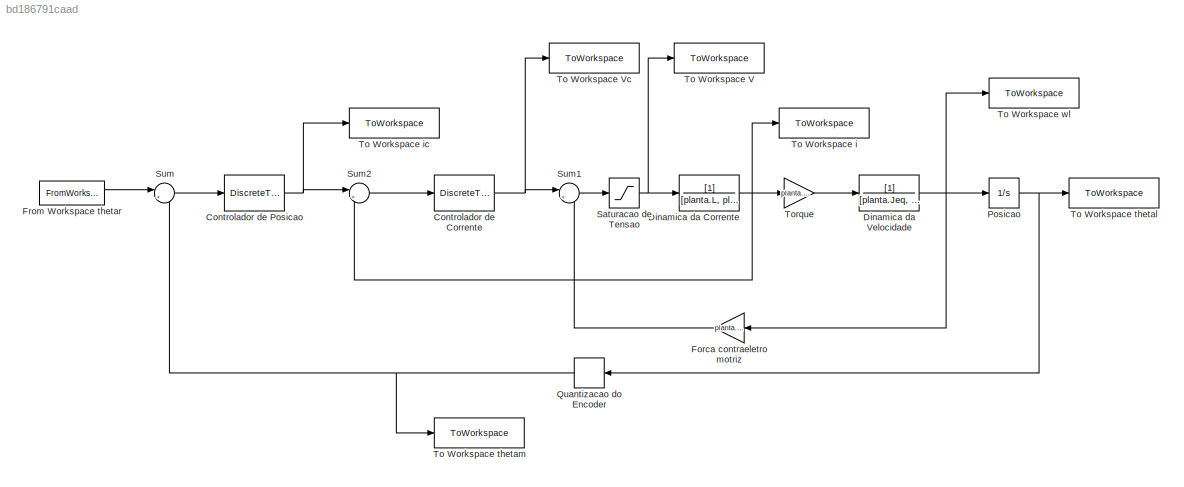
MODEL slx_bd186791caad
KIND model
CONFIG AbsTol = auto
CONFIG EnableMultiTasking = off
CONFIG FixedStep = 1e-6
CONFIG MaxStep = auto
CONFIG MinStep = auto
CONFIG RelTol = 1e-3
CONFIG SampleTimeConstraint = Unconstrained
CONFIG SolverName = FixedStepAuto
CONFIG StartTime = 0.0
CONFIG StopTime = tf
BLOCK [DiscreteTransferFcn] Controlador de Corrente
  Denominator = controlador.corrente.ftd.Denominator{1}
  InputPortMap = u0
  Numerator = controlador.corrente.ftd.Numerator{1}
  SampleTime = controlador.corrente.T
BLOCK [DiscreteTransferFcn] Controlador de Posicao
  Denominator = controlador.posicao.ftd.Denominator{1}
  InputPortMap = u0
  Numerator = controlador.posicao.ftd.Numerator{1}
  SampleTime = controlador.posicao.T
BLOCK [TransferFcn] Dinamica da Corrente
  Denominator = [planta.L, planta.R]
BLOCK [TransferFcn] Dinamica da Velocidade
  Denominator = [planta.Jeq, planta.Beq]
BLOCK [Gain] Forca contraeletromotriz
  Gain = planta.N * planta.Kt
BLOCK [FromWorkspace] From Workspace thetar
  VariableName = thetar
BLOCK [Integrator] Posicao
BLOCK [Quantizer] Quantizacao do Encoder
  QuantizationInterval = planta.quantizacaoEncoder
BLOCK [Saturate] Saturacao de Tensao
  LowerLimit = -planta.Vmax
  UpperLimit = planta.Vmax
BLOCK [Sum] Sum
  Inputs = |+-
BLOCK [Sum] Sum1
  Inputs = |+-
BLOCK [Sum] Sum2
  Inputs = |+-
BLOCK [ToWorkspace] To Workspace V
  FixptAsFi = on
  MaxDataPoints = inf
  SampleTime = 1e-6
  SaveFormat = Structure With Time
  VariableName = V
BLOCK [ToWorkspace] To Workspace Vc
  FixptAsFi = on
  MaxDataPoints = inf
  SampleTime = 1e-6
  SaveFormat = Structure With Time
  VariableName = Vc
BLOCK [ToWorkspace] To Workspace i
  FixptAsFi = on
  MaxDataPoints = inf
  SampleTime = 1e-6
  SaveFormat = Structure With Time
  VariableName = i
BLOCK [ToWorkspace] To Workspace ic
  FixptAsFi = on
  MaxDataPoints = inf
  SampleTime = 1e-6
  SaveFormat = Structure With Time
  VariableName = ic
BLOCK [ToWorkspace] To Workspace thetal
  FixptAsFi = on
  MaxDataPoints = inf
  SampleTime = -1
  SaveFormat = Structure With Time
  VariableName = thetal
BLOCK [ToWorkspace] To Workspace thetam
  FixptAsFi = on
  MaxDataPoints = inf
  SampleTime = -1
  SaveFormat = Structure With Time
  VariableName = thetam
BLOCK [ToWorkspace] To Workspace wl
  FixptAsFi = on
  MaxDataPoints = inf
  SampleTime = 1e-6
  SaveFormat = Structure With Time
  VariableName = wl
BLOCK [Gain] Torque
  Gain = planta.N * planta.eta * planta.Kt
NET Controlador de Corrente:1 -> Sum1:1, To Workspace Vc:1
NET Controlador de Posicao:1 -> Sum2:1, To Workspace ic:1
NET Dinamica da Corrente:1 -> Sum2:2, To Workspace i:1, Torque:1
NET Dinamica da Velocidade:1 -> Forca contraeletromotriz:1, Posicao:1, To Workspace wl:1
LINE Forca contraeletromotriz:1 -> Sum1:2
LINE From Workspace thetar:1 -> Sum:1
NET Posicao:1 -> Quantizacao do Encoder:1, To Workspace thetal:1
NET Quantizacao do Encoder:1 -> Sum:2, To Workspace thetam:1
NET Saturacao de Tensao:1 -> Dinamica da Corrente:1, To Workspace V:1
LINE Sum1:1 -> Saturacao de Tensao:1
LINE Sum2:1 -> Controlador de Corrente:1
LINE Sum:1 -> Controlador de Posicao:1
LINE Torque:1 -> Dinamica da Velocidade:1
note: NET lines group one-source signal fan-out (src -> all destinations, sorted); 1:1 wires keep LINE
